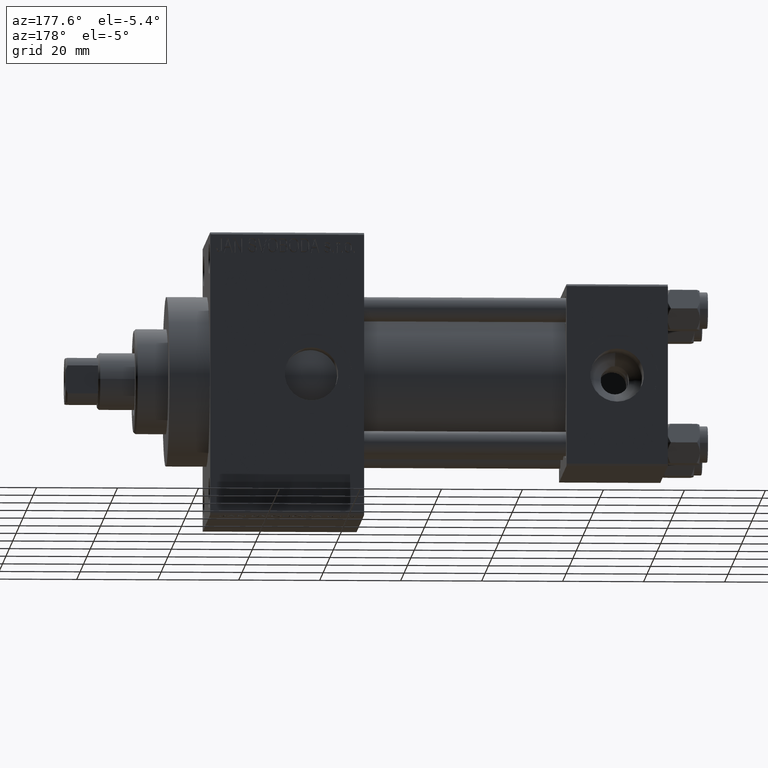
[diagram: clean part render]
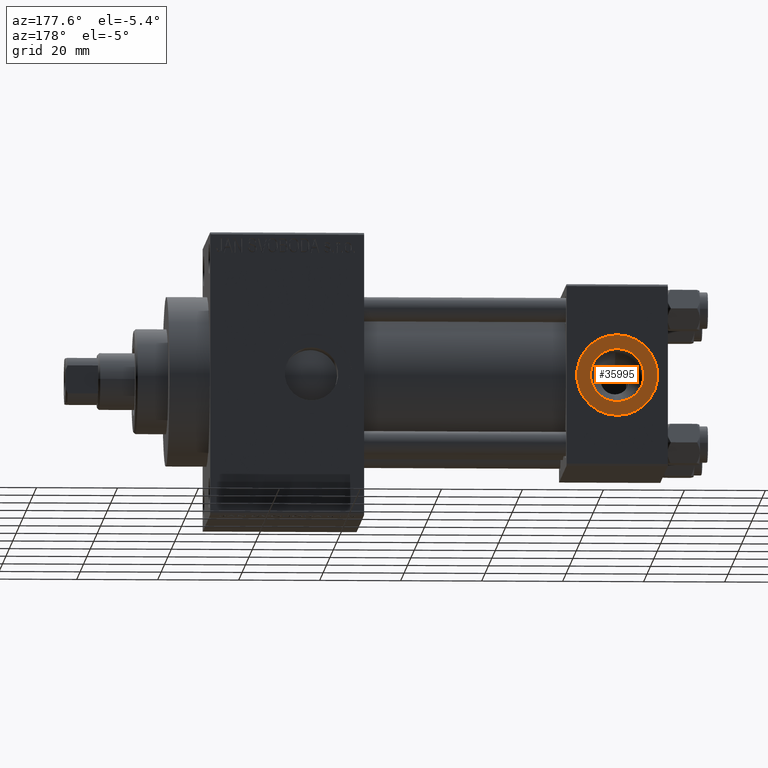
[diagram: same view with one face highlighted and labeled with its STEP entity id]
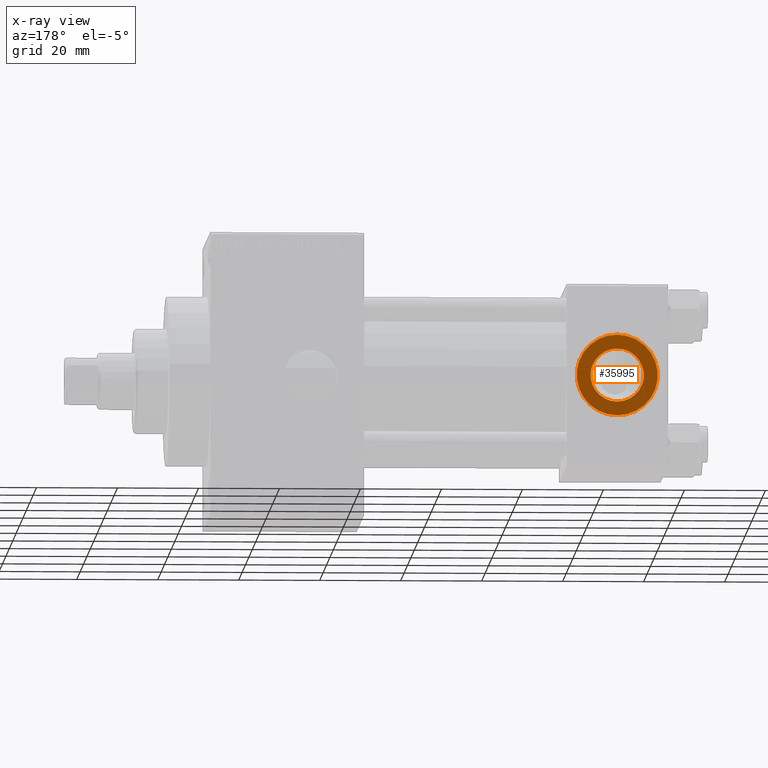
[diagram: x-ray of the same camera — body ghosted, the highlighted face saturated]
A machine part, auxiliary view. The second image highlights one B-rep face of the part: STEP entity #35995.
The next image is the same camera in x-ray: the body ghosted, the highlighted face saturated — about 0% of this face is hidden behind the body in this view.
In plain terms, the highlighted planar face has unit normal (0, 1, 0).
Its self-contained STEP definition (entity closure, byte-faithful):
#3236 = ORIENTED_EDGE ( 'NONE', *, *, #14533, .T. ) ;
#3841 = DIRECTION ( 'NONE',  ( 0.000000000000000000, 0.000000000000000000, 1.000000000000000000 ) ) ;
#3873 = VERTEX_POINT ( 'NONE', #44392 ) ;
#4620 = VERTEX_POINT ( 'NONE', #43776 ) ;
#4969 = EDGE_LOOP ( 'NONE', ( #3236, #39766 ) ) ;
#6675 = VERTEX_POINT ( 'NONE', #19588 ) ;
#7277 = CIRCLE ( 'NONE', #35019, 6.579999999999998295 ) ;
#7562 = CARTESIAN_POINT ( 'NONE',  ( 12.50000000000000000, 22.30000000000000071, 0.000000000000000000 ) ) ;
#7599 = DIRECTION ( 'NONE',  ( 0.000000000000000000, 0.000000000000000000, 1.000000000000000000 ) ) ;
#8215 = EDGE_LOOP ( 'NONE', ( #22221, #21732 ) ) ;
#10699 = VERTEX_POINT ( 'NONE', #31680 ) ;
#10795 = DIRECTION ( 'NONE',  ( 0.000000000000000000, 1.000000000000000000, 0.000000000000000000 ) ) ;
#11246 = CIRCLE ( 'NONE', #42959, 6.579999999999998295 ) ;
#11284 = CIRCLE ( 'NONE', #13670, 9.999999999999996447 ) ;
#11838 = DIRECTION ( 'NONE',  ( 0.000000000000000000, 0.000000000000000000, 1.000000000000000000 ) ) ;
#13670 = AXIS2_PLACEMENT_3D ( 'NONE', #15296, #19266, #7599 ) ;
#14050 = DIRECTION ( 'NONE',  ( 0.000000000000000000, 0.000000000000000000, 1.000000000000000000 ) ) ;
#14124 = DIRECTION ( 'NONE',  ( 0.000000000000000000, 1.000000000000000000, 0.000000000000000000 ) ) ;
#14533 = EDGE_CURVE ( 'NONE', #10699, #4620, #26174, .T. ) ;
#15296 = CARTESIAN_POINT ( 'NONE',  ( 12.50000000000000000, 22.30000000000000071, 0.000000000000000000 ) ) ;
#17851 = FACE_BOUND ( 'NONE', #8215, .T. ) ;
#19266 = DIRECTION ( 'NONE',  ( 0.000000000000000000, 1.000000000000000000, 0.000000000000000000 ) ) ;
#19588 = CARTESIAN_POINT ( 'NONE',  ( 12.50000000000000000, 22.30000000000000071, 6.579999999999998295 ) ) ;
#21732 = ORIENTED_EDGE ( 'NONE', *, *, #28196, .F. ) ;
#22221 = ORIENTED_EDGE ( 'NONE', *, *, #28044, .F. ) ;
#23022 = AXIS2_PLACEMENT_3D ( 'NONE', #44083, #33142, #14050 ) ;
#24964 = EDGE_CURVE ( 'NONE', #4620, #10699, #11284, .T. ) ;
#26174 = CIRCLE ( 'NONE', #23022, 9.999999999999996447 ) ;
#26563 = AXIS2_PLACEMENT_3D ( 'NONE', #32984, #14124, #29251 ) ;
#28044 = EDGE_CURVE ( 'NONE', #6675, #3873, #7277, .T. ) ;
#28196 = EDGE_CURVE ( 'NONE', #3873, #6675, #11246, .T. ) ;
#29251 = DIRECTION ( 'NONE',  ( 0.000000000000000000, -0.000000000000000000, 1.000000000000000000 ) ) ;
#30696 = CARTESIAN_POINT ( 'NONE',  ( 12.50000000000000000, 22.30000000000000071, 0.000000000000000000 ) ) ;
#31680 = CARTESIAN_POINT ( 'NONE',  ( 12.50000000000000000, 22.30000000000000071, 9.999999999999996447 ) ) ;
#32984 = CARTESIAN_POINT ( 'NONE',  ( 12.50000000000000000, 22.30000000000000071, 0.000000000000000000 ) ) ;
#33142 = DIRECTION ( 'NONE',  ( 0.000000000000000000, 1.000000000000000000, 0.000000000000000000 ) ) ;
#33223 = FACE_OUTER_BOUND ( 'NONE', #4969, .T. ) ;
#35019 = AXIS2_PLACEMENT_3D ( 'NONE', #30696, #45845, #11838 ) ;
#35995 = ADVANCED_FACE ( 'NONE', ( #17851, #33223 ), #44652, .T. ) ;
#39766 = ORIENTED_EDGE ( 'NONE', *, *, #24964, .T. ) ;
#42959 = AXIS2_PLACEMENT_3D ( 'NONE', #7562, #10795, #3841 ) ;
#43776 = CARTESIAN_POINT ( 'NONE',  ( 12.50000000000000178, 22.30000000000000071, -9.999999999999996447 ) ) ;
#44083 = CARTESIAN_POINT ( 'NONE',  ( 12.50000000000000000, 22.30000000000000071, 0.000000000000000000 ) ) ;
#44392 = CARTESIAN_POINT ( 'NONE',  ( 12.50000000000000000, 22.30000000000000071, -6.579999999999998295 ) ) ;
#44652 = PLANE ( 'NONE',  #26563 ) ;
#45845 = DIRECTION ( 'NONE',  ( 0.000000000000000000, 1.000000000000000000, 0.000000000000000000 ) ) ;